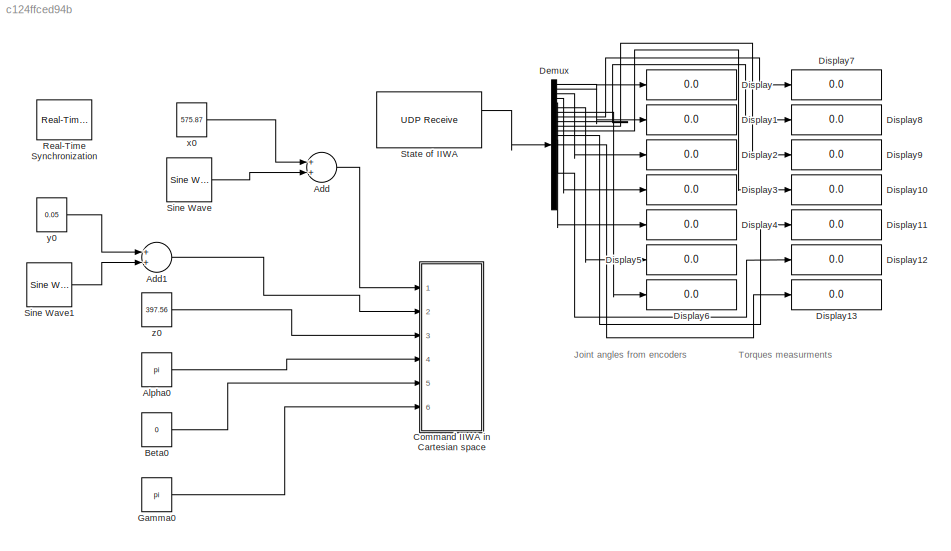
MODEL slx_c124ffced94b
KIND model
CONFIG AbsTol = auto
CONFIG EnableMultiTasking = off
CONFIG FixedStep = auto
CONFIG MaxStep = auto
CONFIG MinStep = auto
CONFIG RelTol = 1e-3
CONFIG SampleTimeConstraint = Unconstrained
CONFIG Solver = FixedStepAuto
CONFIG SolverName = FixedStepAuto
CONFIG StartTime = 0.0
CONFIG StopTime = 10000.0
BLOCK [Sum] Add
  InputSameDT = off
  OutDataTypeStr = Inherit: Inherit via internal rule
  Ports = [2, 1]
  SaturateOnIntegerOverflow = off
BLOCK [Sum] Add1
  InputSameDT = off
  OutDataTypeStr = Inherit: Inherit via internal rule
  Ports = [2, 1]
  SaturateOnIntegerOverflow = off
BLOCK [Constant] Alpha0
  SampleTime = 1/1000
  Value = pi
  VectorParams1D = off
BLOCK [Constant] Beta0
  SampleTime = 1/1000
  Value = 0
  VectorParams1D = off
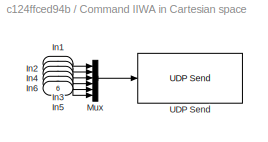
BLOCK [SubSystem] Command IIWA in Cartesian space
  Ports = [6]
  RequestExecContextInheritance = off
BLOCK [Inport] Command IIWA in Cartesian space/In1
  IconDisplay = Port number
BLOCK [Inport] Command IIWA in Cartesian space/In2
  IconDisplay = Port number
  Port = 2
BLOCK [Inport] Command IIWA in Cartesian space/In3
  IconDisplay = Port number
  Port = 3
BLOCK [Inport] Command IIWA in Cartesian space/In4
  IconDisplay = Port number
  Port = 4
BLOCK [Inport] Command IIWA in Cartesian space/In5
  IconDisplay = Port number
  Port = 5
BLOCK [Inport] Command IIWA in Cartesian space/In6
  IconDisplay = Port number
  Port = 6
BLOCK [Mux] Command IIWA in Cartesian space/Mux
  DisplayOption = bar
  Inputs = 6
  Ports = [6, 1]
BLOCK [Reference] Command IIWA in Cartesian space/UDP Send  REF=dspnetwork/UDP Send
  Ports = [1]
  SourceBlock = dspnetwork/UDP Send
  SourceProductBaseCode = DS
  SourceProductName = DSP System Toolbox
  SourceType = UDP Send
BLOCK [Demux] Demux
  DisplayOption = bar
  Outputs = 21+6
  Ports = [1, 27]
BLOCK [Display] Display
  Decimation = 1
  Ports = [1]
BLOCK [Display] Display1
  Decimation = 1
  Ports = [1]
BLOCK [Display] Display10
  Decimation = 1
  Ports = [1]
BLOCK [Display] Display11
  Decimation = 1
  Ports = [1]
BLOCK [Display] Display12
  Decimation = 1
  Ports = [1]
BLOCK [Display] Display13
  Decimation = 1
  Ports = [1]
BLOCK [Display] Display2
  Decimation = 1
  Ports = [1]
BLOCK [Display] Display3
  Decimation = 1
  Ports = [1]
BLOCK [Display] Display4
  Decimation = 1
  Ports = [1]
BLOCK [Display] Display5
  Decimation = 1
  Ports = [1]
BLOCK [Display] Display6
  Decimation = 1
  Ports = [1]
BLOCK [Display] Display7
  Decimation = 1
  Ports = [1]
BLOCK [Display] Display8
  Decimation = 1
  Ports = [1]
BLOCK [Display] Display9
  Decimation = 1
  Ports = [1]
BLOCK [Constant] Gamma0
  SampleTime = 1/1000
  Value = pi
  VectorParams1D = off
BLOCK [Reference] Real-Time Synchronization  REF=sldrtlib/Real-Time
Synchronization
  Ports = []
  SourceBlock = sldrtlib/Real-Time\nSynchronization
  SourceProductBaseCode = WT
  SourceProductName = Simulink Desktop Real-Time
  SourceType = Simulink Desktop Real-Time Synchronization
BLOCK [Reference] Sine Wave  REF=dspsrcs4/Sine Wave
  Ports = [0, 1]
  SourceBlock = dspsrcs4/Sine Wave
  SourceProductBaseCode = DS
  SourceProductName = DSP System Toolbox
  SourceType = Sine Wave
BLOCK [Reference] Sine Wave1  REF=dspsrcs4/Sine Wave
  Ports = [0, 1]
  SourceBlock = dspsrcs4/Sine Wave
  SourceProductBaseCode = DS
  SourceProductName = DSP System Toolbox
  SourceType = Sine Wave
BLOCK [Reference] State of IIWA  REF=dspnetwork/UDP Receive
  Ports = [0, 2]
  SourceBlock = dspnetwork/UDP Receive
  SourceProductBaseCode = DS
  SourceProductName = DSP System Toolbox
  SourceType = UDP Receive
BLOCK [Constant] x0
  SampleTime = 1/1000
  Value = 575.87
  VectorParams1D = off
BLOCK [Constant] y0
  SampleTime = 1/1000
  Value = 0.05
  VectorParams1D = off
BLOCK [Constant] z0
  SampleTime = 1/1000
  Value = 397.56
  VectorParams1D = off
ANNOTATION (root): Torques measurments
ANNOTATION (root): Joint angles from encoders
LINE Add1:1 -> Command IIWA in Cartesian space:2
LINE Add:1 -> Command IIWA in Cartesian space:1
LINE Alpha0:1 -> Command IIWA in Cartesian space:4
LINE Beta0:1 -> Command IIWA in Cartesian space:5
LINE Command IIWA in Cartesian space/In1:1 -> Command IIWA in Cartesian space/Mux:1
LINE Command IIWA in Cartesian space/In2:1 -> Command IIWA in Cartesian space/Mux:2
LINE Command IIWA in Cartesian space/In3:1 -> Command IIWA in Cartesian space/Mux:3
LINE Command IIWA in Cartesian space/In4:1 -> Command IIWA in Cartesian space/Mux:4
LINE Command IIWA in Cartesian space/In5:1 -> Command IIWA in Cartesian space/Mux:5
LINE Command IIWA in Cartesian space/In6:1 -> Command IIWA in Cartesian space/Mux:6
LINE Command IIWA in Cartesian space/Mux:1 -> Command IIWA in Cartesian space/UDP Send:1
LINE Demux:1 -> Display:1
LINE Demux:10 -> Display9:1
LINE Demux:11 -> Display10:1
LINE Demux:12 -> Display11:1
LINE Demux:13 -> Display12:1
LINE Demux:14 -> Display13:1
LINE Demux:2 -> Display1:1
LINE Demux:3 -> Display2:1
LINE Demux:4 -> Display3:1
LINE Demux:5 -> Display4:1
LINE Demux:6 -> Display5:1
LINE Demux:7 -> Display6:1
LINE Demux:8 -> Display7:1
LINE Demux:9 -> Display8:1
LINE Gamma0:1 -> Command IIWA in Cartesian space:6
LINE Sine Wave1:1 -> Add1:2
LINE Sine Wave:1 -> Add:2
LINE State of IIWA:1 -> Demux:1
LINE x0:1 -> Add:1
LINE y0:1 -> Add1:1
LINE z0:1 -> Command IIWA in Cartesian space:3
